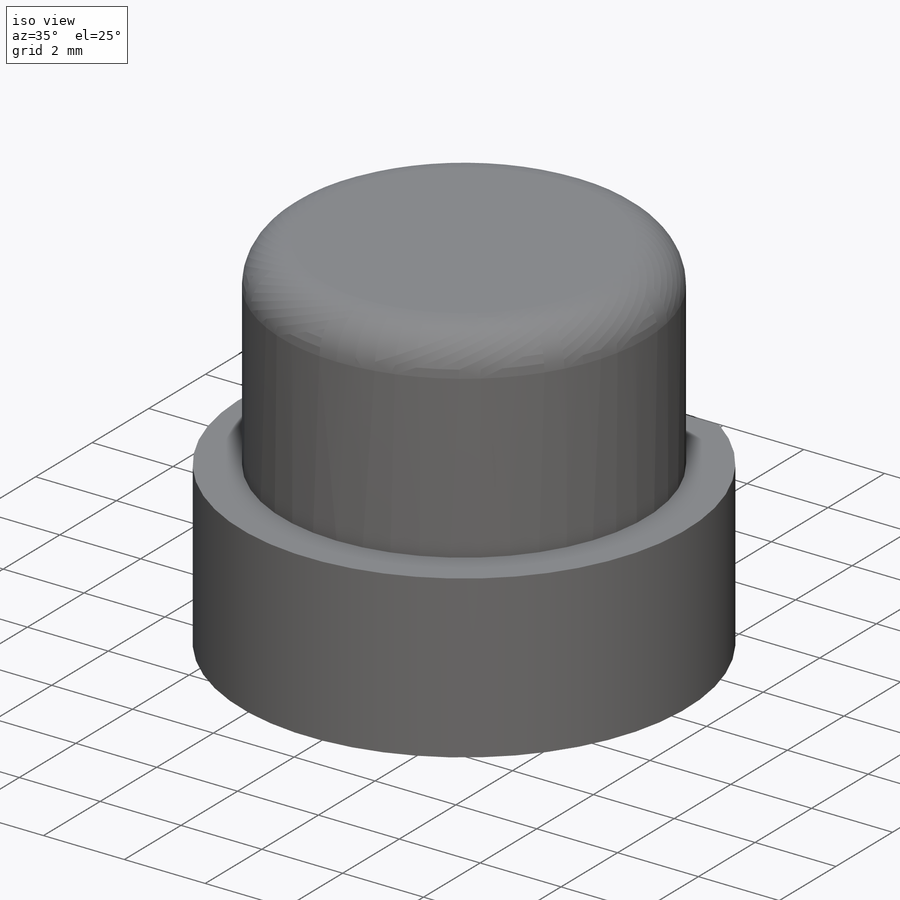
[diagram: iso view]
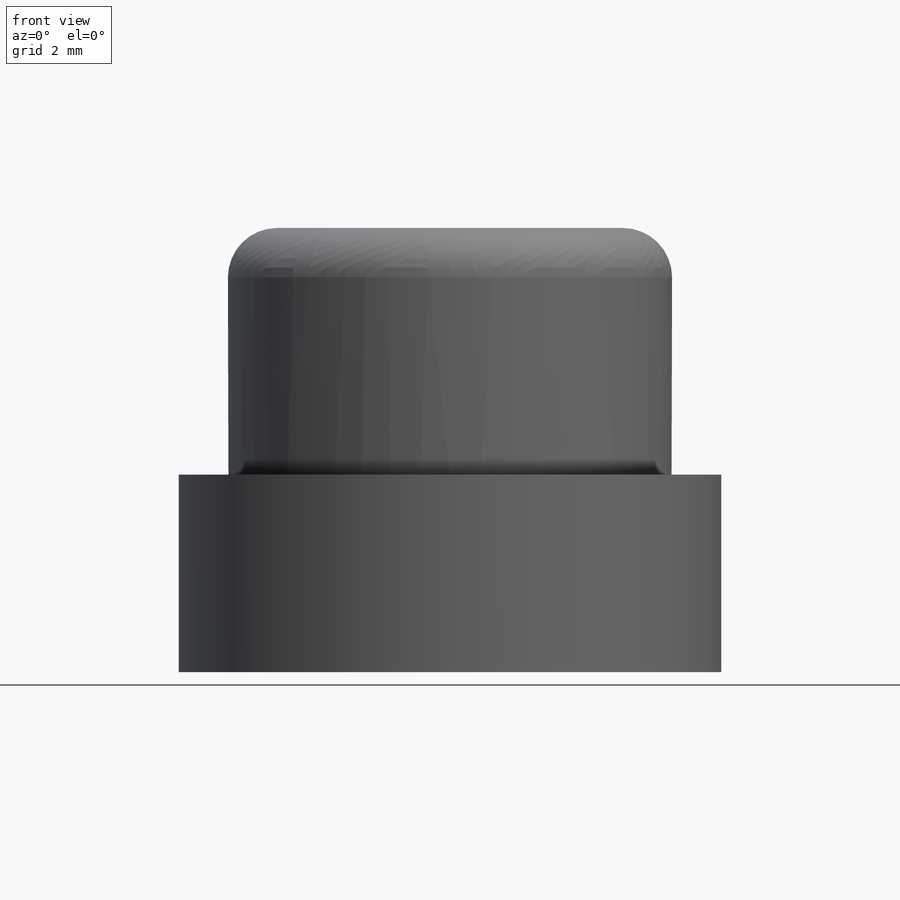
[diagram: front view]
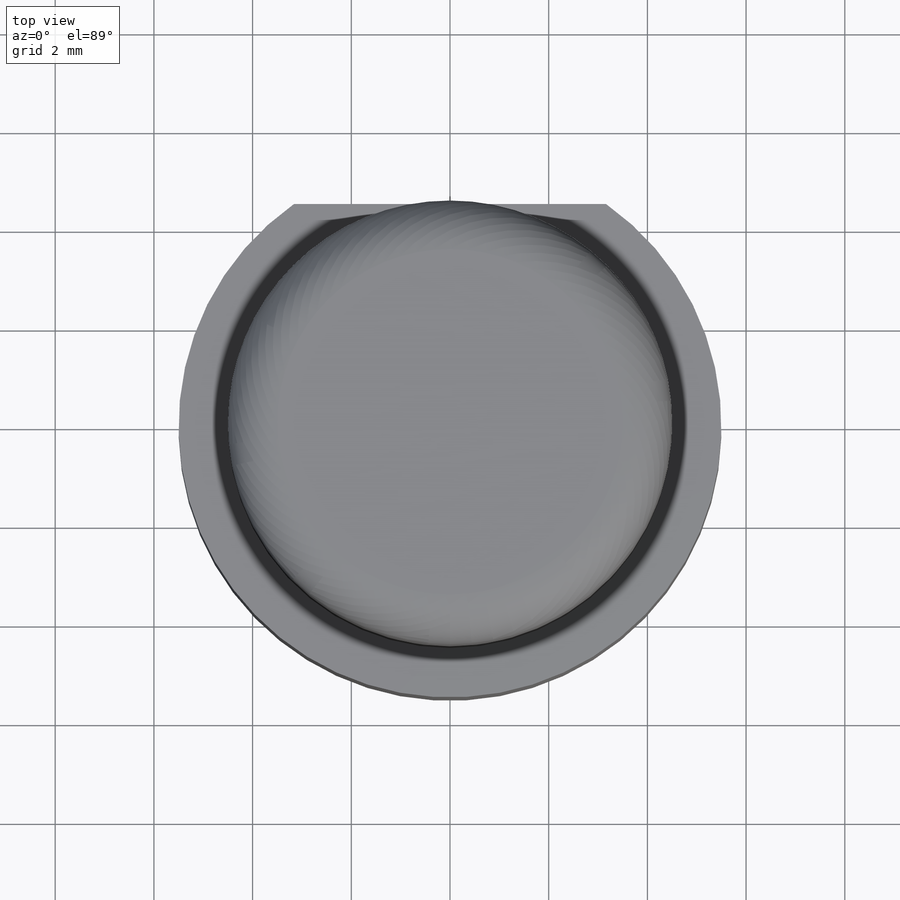
[diagram: top view]
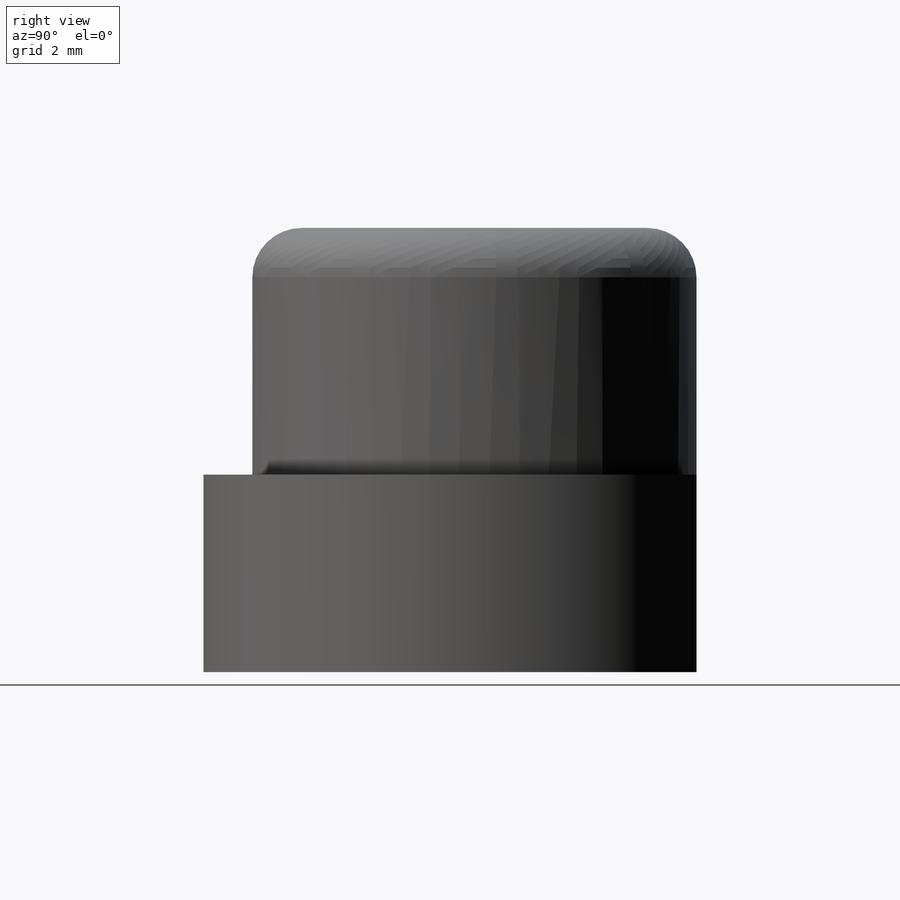
[diagram: right view]
SOLIDWORKS PART (.sldprt)
format: sldprt  version: not decoded by parser v0  size: 166,912 bytes
history: native  units: mm
features: plane x3, sketch x3, cut_extrude x2, material x1, extrude x1, fillet x1 (+10 scaffold rows collapsed)
feature tree (21):
  scaffold x10  (default folders/planes/origin — collapsed)
  material  "Malzeme <belirli değil>"
  plane  "Ön Düzlem"
  plane  "Üst Düzlem"
  plane  "Sağ Düzlem"
  sketch  "Çizim1"  dims[D1=11.0mm D2=4.5mm]
  extrude  "Yükseklik-Ekstrüzyon1"  Depth=9mm
  sketch  "Çizim2"  dims[D1=7.0mm]
  cut_extrude  "Kes-Ekstrüzyon1"  Depth=1.5mm
  sketch  "Çizim3"  dims[D1=9.0mm D2=12.0mm]
  cut_extrude  "Kes-Ekstrüzyon2"  Depth=5mm
  fillet  "Radyus1"  Radius=1mm
decode coverage: 7 of 7 modeling features carry decoded parameters
note: suppression state not decoded; provenance and decode notes live in map.json
